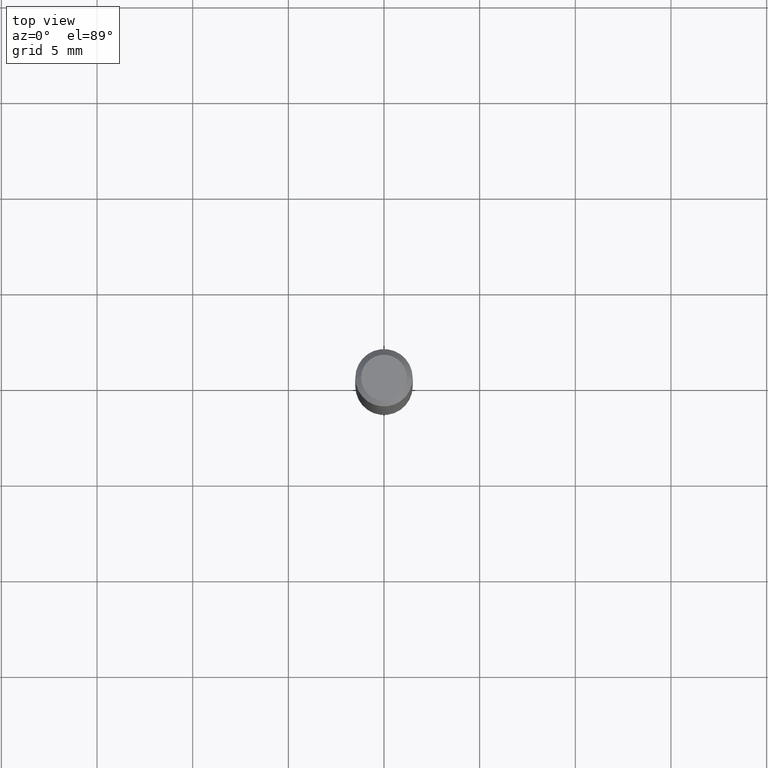
[diagram: clean part render]
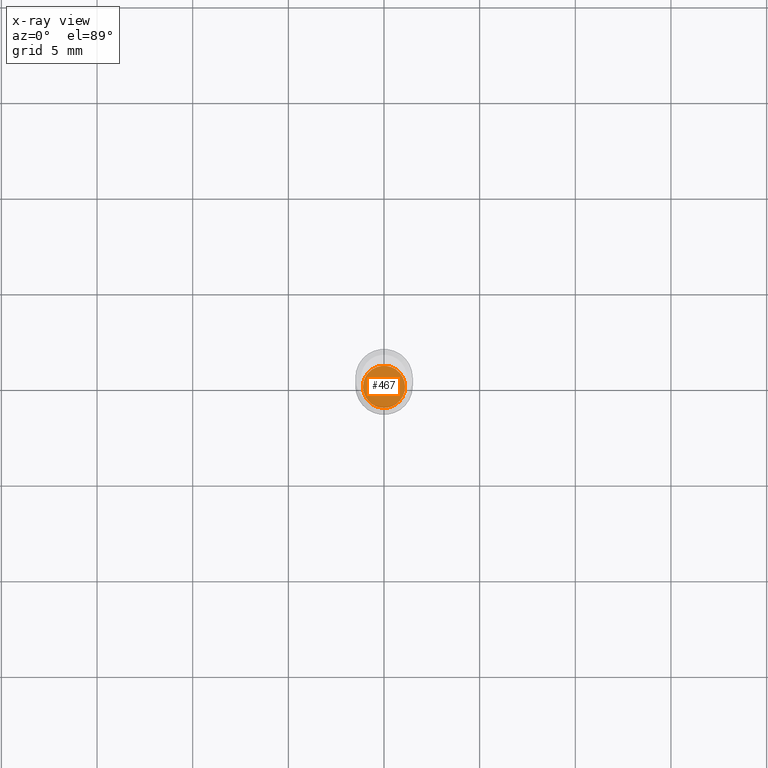
[diagram: x-ray — body ghosted, one internal face saturated and labeled with its STEP entity id]
A machine part, top view, then the same camera in x-ray: the body is ghosted and one INTERNAL B-rep face — a face not visible from any outside direction — is saturated and labeled: STEP entity #467.
In plain terms, the highlighted planar face has unit normal (-0, 0, 1).
Its self-contained STEP definition (entity closure, byte-faithful):
#2 = EDGE_CURVE ( 'NONE', #434, #27, #50, .T. ) ;
#27 = VERTEX_POINT ( 'NONE', #471 ) ;
#50 = CIRCLE ( 'NONE', #427, 0.04340000000000000108 ) ;
#83 = PLANE ( 'NONE',  #258 ) ;
#109 = CARTESIAN_POINT ( 'NONE',  ( 2.676565608369631794E-29, -3.821426325363822773E-15, -1.094499999999999806 ) ) ;
#121 = CIRCLE ( 'NONE', #435, 0.04340000000000000108 ) ;
#132 = CARTESIAN_POINT ( 'NONE',  ( 2.676565608369631794E-29, -3.821426325363822773E-15, -1.094499999999999806 ) ) ;
#156 = DIRECTION ( 'NONE',  ( 1.000000000000000000, -6.982962677686272233E-15, 0.000000000000000000 ) ) ;
#161 = EDGE_CURVE ( 'NONE', #27, #434, #121, .T. ) ;
#171 = EDGE_LOOP ( 'NONE', ( #346, #231 ) ) ;
#231 = ORIENTED_EDGE ( 'NONE', *, *, #2, .F. ) ;
#258 = AXIS2_PLACEMENT_3D ( 'NONE', #313, #431, #462 ) ;
#267 = DIRECTION ( 'NONE',  ( -2.445468806185136597E-29, 3.491481338843145583E-15, 1.000000000000000000 ) ) ;
#313 = CARTESIAN_POINT ( 'NONE',  ( 2.676565608369631794E-29, -3.821426325363822773E-15, -1.094499999999999806 ) ) ;
#346 = ORIENTED_EDGE ( 'NONE', *, *, #161, .F. ) ;
#392 = FACE_OUTER_BOUND ( 'NONE', #171, .T. ) ;
#395 = CARTESIAN_POINT ( 'NONE',  ( -0.04340000000000000108, -3.510401550869828133E-15, -1.094499999999999806 ) ) ;
#398 = DIRECTION ( 'NONE',  ( 1.000000000000000000, -6.982962677686272233E-15, 0.000000000000000000 ) ) ;
#403 = DIRECTION ( 'NONE',  ( -2.445468806185136597E-29, 3.491481338843145583E-15, 1.000000000000000000 ) ) ;
#427 = AXIS2_PLACEMENT_3D ( 'NONE', #132, #403, #398 ) ;
#431 = DIRECTION ( 'NONE',  ( -2.438088387897960049E-29, 3.491481338843145188E-15, 1.000000000000000000 ) ) ;
#434 = VERTEX_POINT ( 'NONE', #395 ) ;
#435 = AXIS2_PLACEMENT_3D ( 'NONE', #109, #267, #156 ) ;
#462 = DIRECTION ( 'NONE',  ( 1.000000000000000000, -6.982962677686265922E-15, 4.876176775795935793E-29 ) ) ;
#467 = ADVANCED_FACE ( 'NONE', ( #392 ), #83, .F. ) ;
#471 = CARTESIAN_POINT ( 'NONE',  ( 0.04340000000000000108, -4.124486905575406837E-15, -1.094499999999999806 ) ) ;